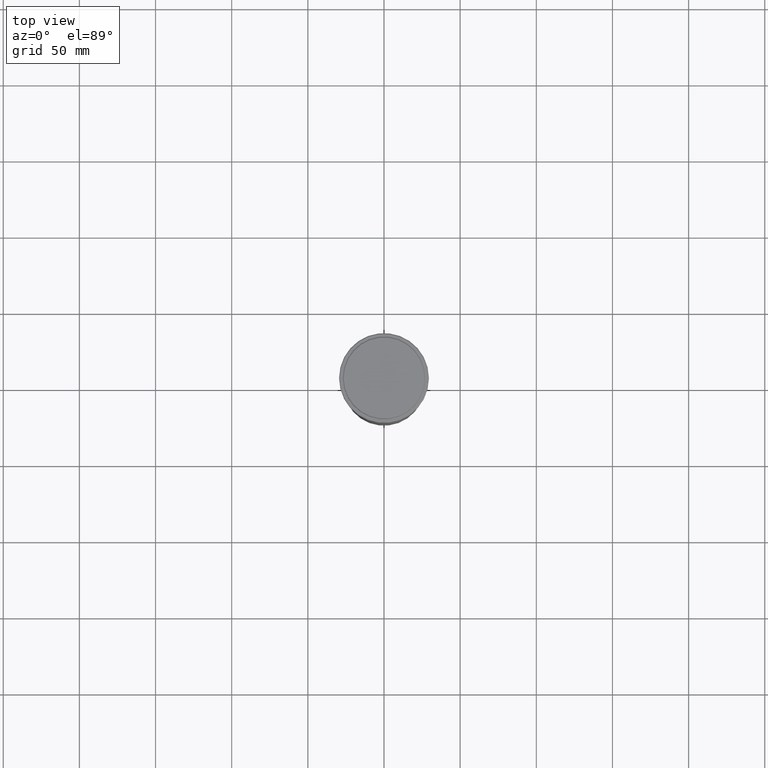
[diagram: clean part render]
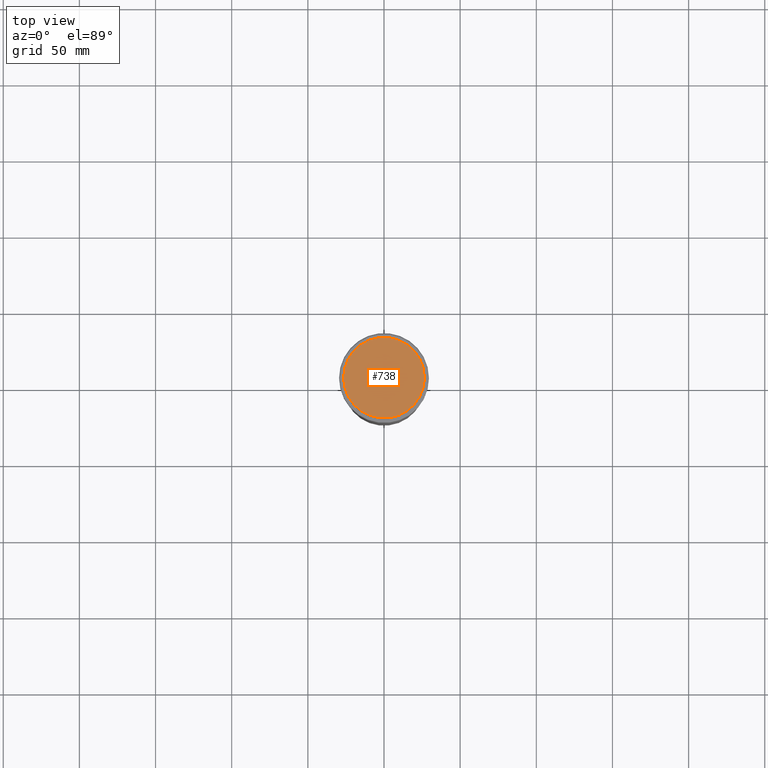
[diagram: same view with one face highlighted and labeled with its STEP entity id]
A machine part, top view. The second image highlights one B-rep face of the part: STEP entity #738.
In plain terms, the highlighted planar face has unit normal (0, -0, 1).
Its self-contained STEP definition (entity closure, byte-faithful):
#7 = CARTESIAN_POINT ( 'NONE',  ( 0.000000000000000000, 0.000000000000000000, 0.000000000000000000 ) ) ;
#46 = DIRECTION ( 'NONE',  ( -0.000000000000000000, -0.000000000000000000, 1.000000000000000000 ) ) ;
#92 = PLANE ( 'NONE',  #401 ) ;
#165 = EDGE_CURVE ( 'NONE', #1085, #1319, #1406, .T. ) ;
#204 = EDGE_LOOP ( 'NONE', ( #1301, #1296 ) ) ;
#391 = DIRECTION ( 'NONE',  ( 0.000000000000000000, -0.000000000000000000, 1.000000000000000000 ) ) ;
#401 = AXIS2_PLACEMENT_3D ( 'NONE', #1374, #391, #951 ) ;
#530 = AXIS2_PLACEMENT_3D ( 'NONE', #7, #46, #1347 ) ;
#607 = FACE_OUTER_BOUND ( 'NONE', #204, .T. ) ;
#661 = CIRCLE ( 'NONE', #530, 26.50000000000007816 ) ;
#734 = AXIS2_PLACEMENT_3D ( 'NONE', #1232, #785, #1226 ) ;
#738 = ADVANCED_FACE ( 'NONE', ( #607 ), #92, .T. ) ;
#785 = DIRECTION ( 'NONE',  ( -0.000000000000000000, -0.000000000000000000, 1.000000000000000000 ) ) ;
#896 = CARTESIAN_POINT ( 'NONE',  ( 26.50000000000007816, 3.275930187719175074E-15, 0.000000000000000000 ) ) ;
#925 = EDGE_CURVE ( 'NONE', #1319, #1085, #661, .T. ) ;
#951 = DIRECTION ( 'NONE',  ( 1.000000000000000000, 0.000000000000000000, 0.000000000000000000 ) ) ;
#1019 = CARTESIAN_POINT ( 'NONE',  ( -26.50000000000007816, 0.000000000000000000, 0.000000000000000000 ) ) ;
#1085 = VERTEX_POINT ( 'NONE', #896 ) ;
#1226 = DIRECTION ( 'NONE',  ( 1.000000000000000000, 0.000000000000000000, 0.000000000000000000 ) ) ;
#1232 = CARTESIAN_POINT ( 'NONE',  ( 0.000000000000000000, 0.000000000000000000, 0.000000000000000000 ) ) ;
#1296 = ORIENTED_EDGE ( 'NONE', *, *, #165, .T. ) ;
#1301 = ORIENTED_EDGE ( 'NONE', *, *, #925, .T. ) ;
#1319 = VERTEX_POINT ( 'NONE', #1019 ) ;
#1347 = DIRECTION ( 'NONE',  ( 1.000000000000000000, 0.000000000000000000, 0.000000000000000000 ) ) ;
#1374 = CARTESIAN_POINT ( 'NONE',  ( 0.000000000000000000, 0.000000000000000000, 0.000000000000000000 ) ) ;
#1406 = CIRCLE ( 'NONE', #734, 26.50000000000007816 ) ;